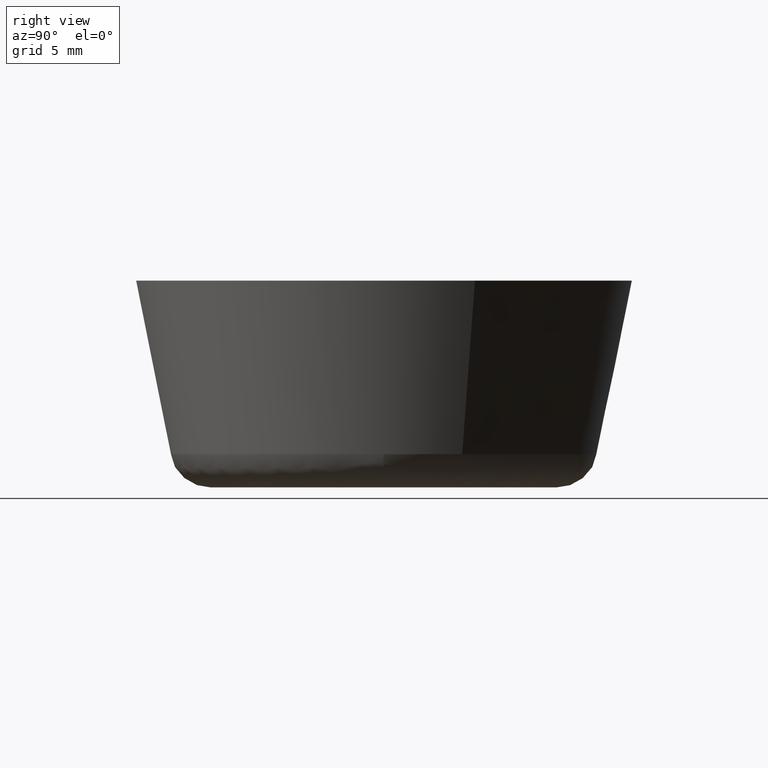
[diagram: clean part render]
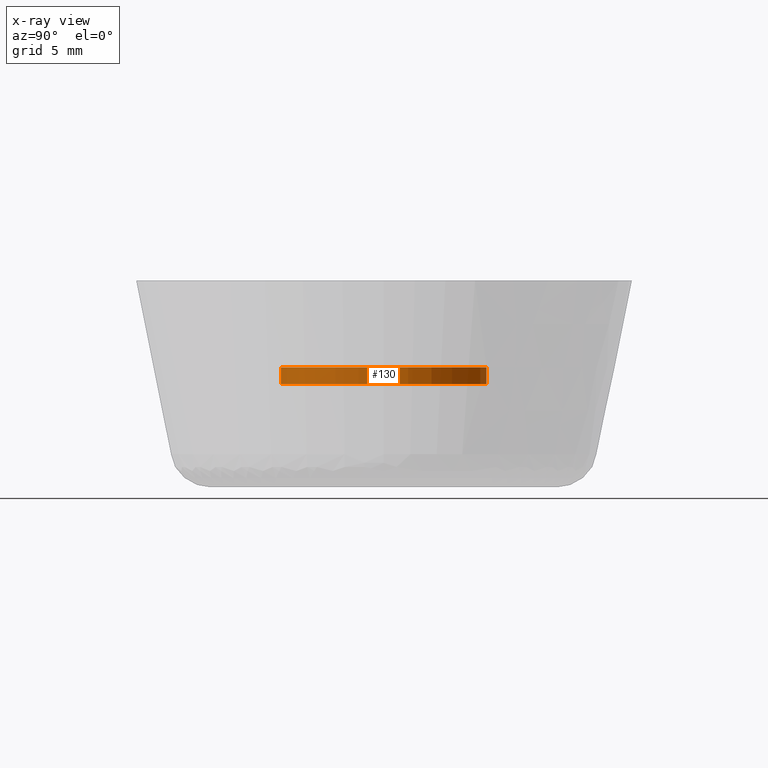
[diagram: x-ray — body ghosted, one internal face saturated and labeled with its STEP entity id]
A machine part, right view, then the same camera in x-ray: the body is ghosted and one INTERNAL B-rep face — a face not visible from any outside direction — is saturated and labeled: STEP entity #130.
In plain terms, the highlighted cylindrical surface (partial cylindrical patch) has radius 5 mm, axis along (-0, -0, -1).
Its self-contained STEP definition (entity closure, byte-faithful):
#130=ADVANCED_FACE('',(#319),#318,.F.);
#318=CYLINDRICAL_SURFACE('',#491,5.00000000000E+000);
#319=FACE_OUTER_BOUND('',#492,.T.);
#488=CARTESIAN_POINT('',(3.12604167755E-017,-3.05284345532E-018,5.40000009537E+000));
#489=DIRECTION('',(-1.40140186473E-014,-1.66577854652E-015,-1.00000000000E+000));
#490=DIRECTION('',(-1.18034234657E-001,9.93009526364E-001,-4.15591646393E-027));
#491=AXIS2_PLACEMENT_3D('',#488,#489,#490);
#492=EDGE_LOOP('',(#580,#581,#582,#583));
#580=ORIENTED_EDGE('',*,*,#616,.F.);
#581=ORIENTED_EDGE('',*,*,#631,.T.);
#582=ORIENTED_EDGE('',*,*,#612,.T.);
#583=ORIENTED_EDGE('',*,*,#632,.F.);
#612=EDGE_CURVE('',#791,#790,#798,.T.);
#616=EDGE_CURVE('',#819,#818,#826,.T.);
#631=EDGE_CURVE('',#819,#791,#922,.T.);
#632=EDGE_CURVE('',#818,#790,#928,.T.);
#790=VERTEX_POINT('',#1037);
#791=VERTEX_POINT('',#1038);
#798=CIRCLE('',#1046,5.00000000000E+000);
#818=VERTEX_POINT('',#1057);
#819=VERTEX_POINT('',#1058);
#826=CIRCLE('',#1066,5.00000000000E+000);
#922=(BOUNDED_CURVE() B_SPLINE_CURVE(1,(#1117,#1118),.UNSPECIFIED.,.F.,.F.) B_SPLINE_CURVE_WITH_KNOTS((2,2),(8.33333730703E-002,9.16666640476E-001),.UNSPECIFIED.) CURVE() GEOMETRIC_REPRESENTATION_ITEM() RATIONAL_B_SPLINE_CURVE((1.00000000000E+000,1.00000000000E+000)) REPRESENTATION_ITEM('') );
#928=(BOUNDED_CURVE() B_SPLINE_CURVE(1,(#1119,#1120),.UNSPECIFIED.,.F.,.F.) B_SPLINE_CURVE_WITH_KNOTS((2,2),(8.33333333368E-002,9.16666666667E-001),.UNSPECIFIED.) CURVE() GEOMETRIC_REPRESENTATION_ITEM() RATIONAL_B_SPLINE_CURVE((7.50000000000E-001,7.50000000000E-001)) REPRESENTATION_ITEM('') );
#1037=CARTESIAN_POINT('',(5.91029299597E-001,-4.96494555529E+000,5.00000000000E+000));
#1038=CARTESIAN_POINT('',(-5.91029299593E-001,4.96494555529E+000,5.00000000000E+000));
#1043=CARTESIAN_POINT('',(1.75459646812E-012,7.99804666940E-013,5.00000000000E+000));
#1044=DIRECTION('',(-8.73105391257E-016,-1.03781804154E-016,-1.00000000000E+000));
#1045=DIRECTION('',(-1.18205859919E-001,9.92989111059E-001,1.51972122894E-019));
#1046=AXIS2_PLACEMENT_3D('',#1043,#1044,#1045);
#1057=CARTESIAN_POINT('',(5.90171136897E-001,-4.96504763614E+000,5.80000000000E+000));
#1058=CARTESIAN_POINT('',(-5.90171173285E-001,4.96504763182E+000,5.80000000000E+000));
#1063=CARTESIAN_POINT('',(1.79634085384E-012,8.17568235334E-013,5.80000000000E+000));
#1064=DIRECTION('',(-4.53859172467E-013,-6.77190586681E-014,-1.00000000000E+000));
#1065=DIRECTION('',(1.18034227379E-001,-9.93009527229E-001,1.36747536714E-014));
#1066=AXIS2_PLACEMENT_3D('',#1063,#1064,#1065);
#1117=CARTESIAN_POINT('',(-5.90171173285E-001,4.96504763182E+000,5.79999996186E+000));
#1118=CARTESIAN_POINT('',(-5.90171173285E-001,4.96504763182E+000,5.00000002514E+000));
#1119=CARTESIAN_POINT('',(5.90171173285E-001,-4.96504763182E+000,5.80000000000E+000));
#1120=CARTESIAN_POINT('',(5.90171173285E-001,-4.96504763182E+000,5.00000000000E+000));